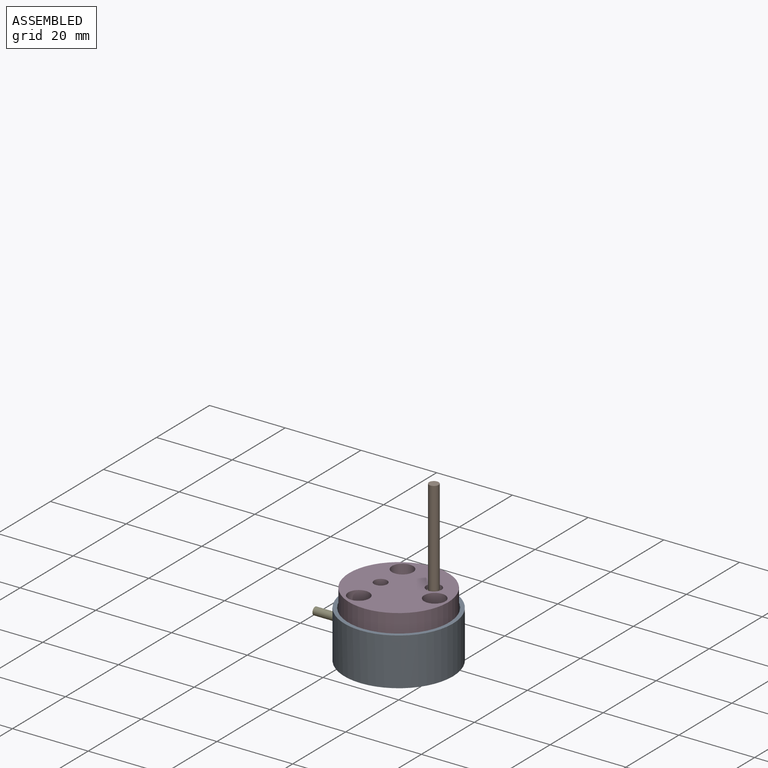
[diagram: assembled view]
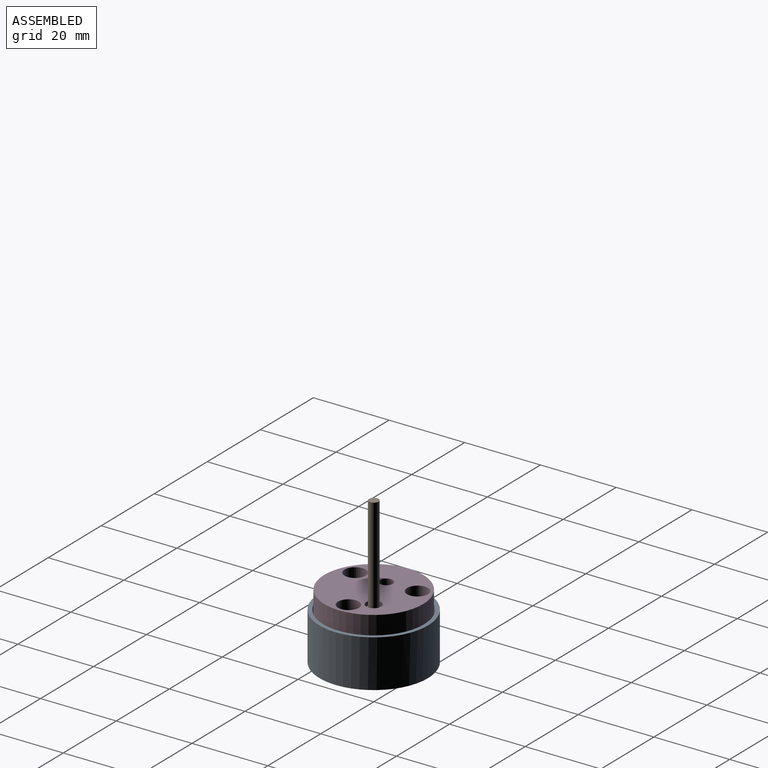
[diagram: assembled view, second angle]
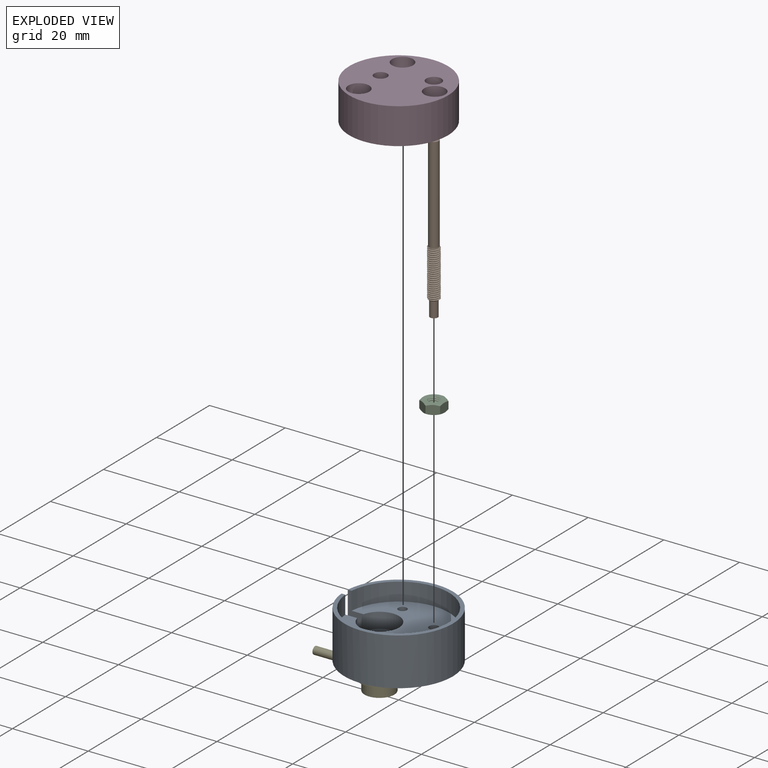
[diagram: exploded view]
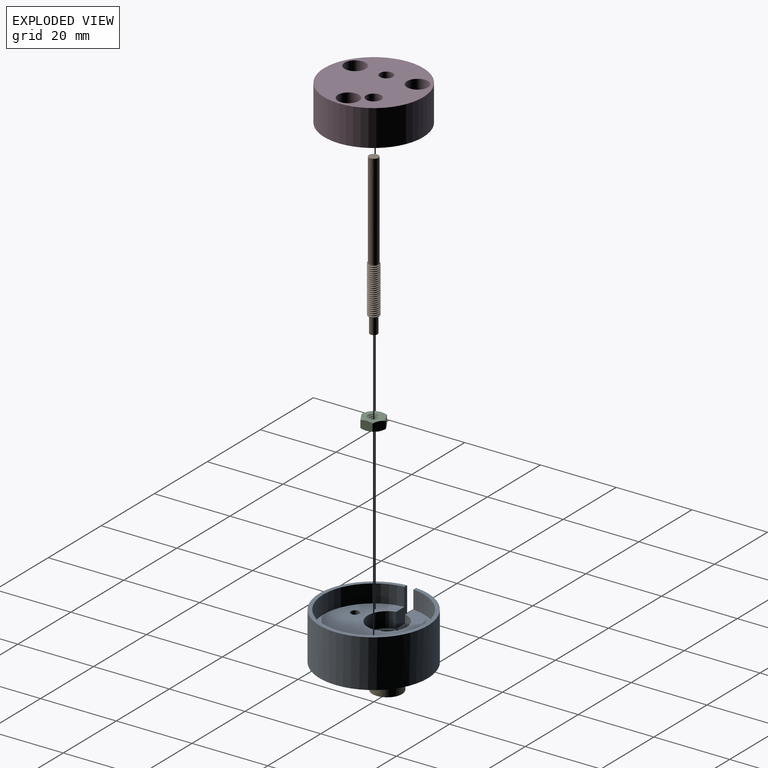
[diagram: exploded view, second angle]
ASSEMBLY  parts=5 mates=4
PART A: 18 faces, bbox 28.7x28.7x12.6 mm
  f0: plane 28.66x28.61mm, normal (0,0,1), area 85.8mm2, adj f1,f4,f15,f16
  f1: cylinder r=13.31mm len=26.63mm, axis (0,0,-1), area 387.1mm2, adj f0,f2,f15,f16
  f2: plane 26.63x26.58mm, normal (0,0,1), area 448.7mm2, adj f1,f5,f7,f9,f11,f15,f16,f17
  f3: plane 28.66x28.66mm, normal (0,0,-1), area 640.3mm2, adj f4,f17
  f4: cylinder r=14.33mm len=28.66mm, axis (0,0,-1), area 1112.2mm2, adj f0,f3,f12,f15,f16
  f5: cylinder r=1.13mm len=5.72mm, axis (0,0,1), area 40.6mm2, adj f2,f6
  f6: cone r=0mm half-angle=59deg, axis (0,0,1), area 4.7mm2, adj f5
  f7: cylinder r=1.13mm len=5.72mm, axis (0,0,1), area 40.6mm2, adj f2,f8
  f8: cone r=0mm half-angle=59deg, axis (0,0,1), area 4.7mm2, adj f7
  f9: cylinder r=1.13mm len=5.72mm, axis (0,0,1), area 40.6mm2, adj f2,f10
  f10: cone r=0mm half-angle=59deg, axis (0,0,1), area 4.7mm2, adj f9
  f11: cylinder r=5.17mm len=10.34mm, axis (0,0,1), area 122.2mm2, adj f2,f12,f15,f16
  f12: plane 14.42x10.34mm, normal (0,0,1), area 43.4mm2, adj f4,f11,f13,f15,f16
  f13: cylinder r=4mm len=8mm, axis (0,0,1), area 72.1mm2, adj f12,f14
  f14: plane 8x8mm, normal (0,0,1), area 50.3mm2, adj f13
  f15: plane 8.83x4.17mm, normal (0,1,0), area 21.8mm2, adj f0,f1,f2,f4,f11,f12
  f16: plane 8.83x4.17mm, normal (0,-1,0), area 21.8mm2, adj f0,f1,f2,f4,f11,f12
  f17: cylinder r=1.25mm len=7.82mm, axis (0,0,1), area 61.4mm2, adj f2,f3
PART B: 13 faces, bbox 3.1x3.6x42.3 mm
  f0: cylinder r=1.27mm len=25.4mm, axis (0,0,-1), area 202.7mm2, adj f5,f11,f12
  f1: cylinder r=1.03mm len=4.1mm, axis (0,0,1), area 26.5mm2, adj f6,f10
  f2: cylinder r=1.5mm len=12.4mm, axis (0,0,-1), area 14.6mm2, adj f3,f4,f5,f7,f8
  f3: cone r=1.5mm half-angle=45deg, axis (0,0,1), area 1.6mm2, adj f2,f4,f6,f7,f8,f9
  f4: cone r=1.5mm half-angle=45deg, axis (0,0,1), area 0.1mm2, adj f2,f3,f8
  f5: plane 2.8x2.69mm, normal (0,0,1), area 0.8mm2, adj f0,f2,f7,f8
  f6: plane 2.4x2.4mm, normal (0,0,-1), area 1.2mm2, adj f1,f3
  f7: bspline ~13.07x3.46mm, area 67.2mm2, adj f2,f3,f5,f9,f12
  f8: bspline ~12.83x3mm, area 67.2mm2, adj f2,f3,f4,f5,f9,f12
  f9: bspline ~12.92x2.46mm, area 24.4mm2, adj f3,f7,f8,f12
  f10: plane 2.06x2.06mm, normal (0,0,-1), area 3.3mm2, adj f1
  f11: plane 2.54x2.54mm, normal (0,0,1), area 5.1mm2, adj f0
  f12: plane 1.93x1.37mm, normal (0,0,-1), area 0.1mm2, adj f0,f7,f8,f9
PART C: 26 faces, bbox 6.6x3.1x6.6 mm
  f0: cone r=2.75mm half-angle=60deg, axis (0,1,0), area 0.7mm2, adj f11,f12,f15
  f1: cone r=1.5mm half-angle=45deg, axis (0,-1,0), area 2mm2, adj f5,f6,f7,f15
  f2: cone r=2.75mm half-angle=60deg, axis (0,-1,0), area 0.7mm2, adj f8,f11,f12
  f3: cone r=1.5mm half-angle=45deg, axis (0,1,0), area 2mm2, adj f5,f6,f7,f8
  f4: cylinder r=1.5mm len=3mm, axis (0,-1,0), area 2.8mm2, adj f5,f7,f8,f15
  f5: bspline ~3.46x3mm, area 13.2mm2, adj f1,f3,f4,f6
  f6: bspline ~2.35x2.35mm, area 1.6mm2, adj f1,f3,f5,f7
  f7: bspline ~3.46x3mm, area 13.2mm2, adj f1,f3,f4,f6
  f8: plane 5.5x5.5mm, normal (0,1,0), area 16.7mm2, adj f2,f3,f4,f16,f17,f18,f19,f20
  f9: plane 3.01x2.66mm, normal (-0.5,0,-0.87), area 7.1mm2, adj f10,f14,f16,f20,f23,f24
  f10: plane 3.44x2.66mm, normal (-1,0,0), area 7.1mm2, adj f9,f11,f19,f20,f24,f25
  f11: plane 3.01x2.66mm, normal (-0.5,0,0.87), area 7.1mm2, adj f0,f2,f10,f12,f19,f25
  f12: plane 3.01x2.66mm, normal (0.5,0,0.87), area 7.1mm2, adj f0,f2,f11,f13,f18,f21
  f13: plane 3.44x2.66mm, normal (1,0,0), area 7.1mm2, adj f12,f14,f17,f18,f21,f22
  f14: plane 3.01x2.66mm, normal (0.5,0,-0.87), area 7.1mm2, adj f9,f13,f16,f17,f22,f23
  f15: plane 5.5x5.5mm, normal (0,-1,0), area 16.7mm2, adj f0,f1,f4,f21,f22,f23,f24,f25
  f16: cone r=2.75mm half-angle=60deg, axis (0,-1,0), area 0.7mm2, adj f8,f9,f14
  f17: cone r=2.75mm half-angle=60deg, axis (0,-1,0), area 0.7mm2, adj f8,f13,f14
  f18: cone r=2.75mm half-angle=60deg, axis (0,-1,0), area 0.7mm2, adj f8,f12,f13
  f19: cone r=2.75mm half-angle=60deg, axis (0,-1,0), area 0.7mm2, adj f8,f10,f11
  f20: cone r=2.75mm half-angle=60deg, axis (0,-1,0), area 0.7mm2, adj f8,f9,f10
  f21: cone r=2.75mm half-angle=60deg, axis (0,1,0), area 0.7mm2, adj f12,f13,f15
  f22: cone r=2.75mm half-angle=60deg, axis (0,1,0), area 0.7mm2, adj f13,f14,f15
  f23: cone r=2.75mm half-angle=60deg, axis (0,1,0), area 0.7mm2, adj f9,f14,f15
  f24: cone r=2.75mm half-angle=60deg, axis (0,1,0), area 0.7mm2, adj f9,f10,f15
  f25: cone r=2.75mm half-angle=60deg, axis (0,1,0), area 0.7mm2, adj f10,f11,f15
PART D: 17 faces, bbox 26.1x26.1x9.5 mm
  f0: cylinder r=2mm len=6.35mm, axis (0,0,1), area 79.8mm2, adj f2,f16
  f1: cylinder r=13.06mm len=26.12mm, axis (0,0,-1), area 781.6mm2, adj f2,f3
  f2: plane 26.12x26.12mm, normal (0,0,1), area 441.2mm2, adj f0,f1,f6,f9,f12,f13
  f3: plane 26.12x26.12mm, normal (0,0,-1), area 473.5mm2, adj f1,f4,f7,f10,f15
  f4: cylinder r=1.47mm len=6.68mm, axis (0,0,1), area 61.8mm2, adj f3,f5
  f5: plane 5.56x5.56mm, normal (0,0,1), area 17.4mm2, adj f4,f6
  f6: cylinder r=2.78mm len=5.56mm, axis (0,0,1), area 49.7mm2, adj f2,f5
  f7: cylinder r=1.47mm len=6.68mm, axis (0,0,1), area 61.8mm2, adj f3,f8
  f8: plane 5.56x5.56mm, normal (0,0,1), area 17.4mm2, adj f7,f9
  f9: cylinder r=2.78mm len=5.56mm, axis (0,0,1), area 49.7mm2, adj f2,f8
  f10: cylinder r=1.47mm len=6.68mm, axis (0,0,1), area 61.8mm2, adj f3,f11
  f11: plane 5.56x5.56mm, normal (0,0,1), area 17.4mm2, adj f10,f12
  f12: cylinder r=2.78mm len=5.56mm, axis (0,0,1), area 49.7mm2, adj f2,f11
  f13: cylinder r=1.73mm len=5.87mm, axis (0,0,1), area 63.7mm2, adj f2,f14
  f14: cone r=0mm half-angle=59deg, axis (0,0,1), area 10.9mm2, adj f13
  f15: cylinder r=3.65mm len=7.3mm, axis (0,0,-1), area 72.8mm2, adj f3,f16
  f16: plane 7.3x7.3mm, normal (0,0,-1), area 29.3mm2, adj f0,f15
PART E: 7 faces, bbox 22.1x6.4x10.2 mm
  f0: cylinder r=1mm len=12mm, axis (-1,0,0), area 75.4mm2, adj f2,f6
  f1: cylinder r=3.94mm len=7.87mm, axis (0,1,0), area 74.2mm2, adj f4,f5
  f2: cylinder r=5.1mm len=10.2mm, axis (0,-1,0), area 105.8mm2, adj f0,f3,f4
  f3: plane 10.2x10.2mm, normal (0,1,0), area 81.7mm2, adj f2
  f4: plane 10.2x10.2mm, normal (0,-1,0), area 33.1mm2, adj f1,f2
  f5: plane 7.87x7.87mm, normal (0,-1,0), area 48.6mm2, adj f1
  f6: plane 2x2mm, normal (1,0,0), area 3.1mm2, adj f0
PLACE A t=(0,0,12.59)mm
PLACE B t=(6.24,4.37,4.1)mm
PLACE C rot(axis=(1,0,0),90deg) t=(6.24,4.37,9.02)mm
PLACE D rot(axis=(0,0,-1),90deg) t=(0,0,7.82)mm
PLACE E rot(axis=(0,0.71,0.71),180deg) t=(-5.08,0,3.89)mm
MATE fastened A.f5 <-> D.f4  axis (0,0,1) through (9.53,0,7.82)mm
MATE fastened A.f11 <-> E.f1  axis (0,0,1) through (-5.08,0,0.89)mm
MATE fastened A.f17 <-> C.f0  axis (0,0,1) through (6.24,4.37,7.82)mm
MATE fastened B.f0 <-> A.f17  axis (0,0,-1) through (6.24,4.37,0)mm
